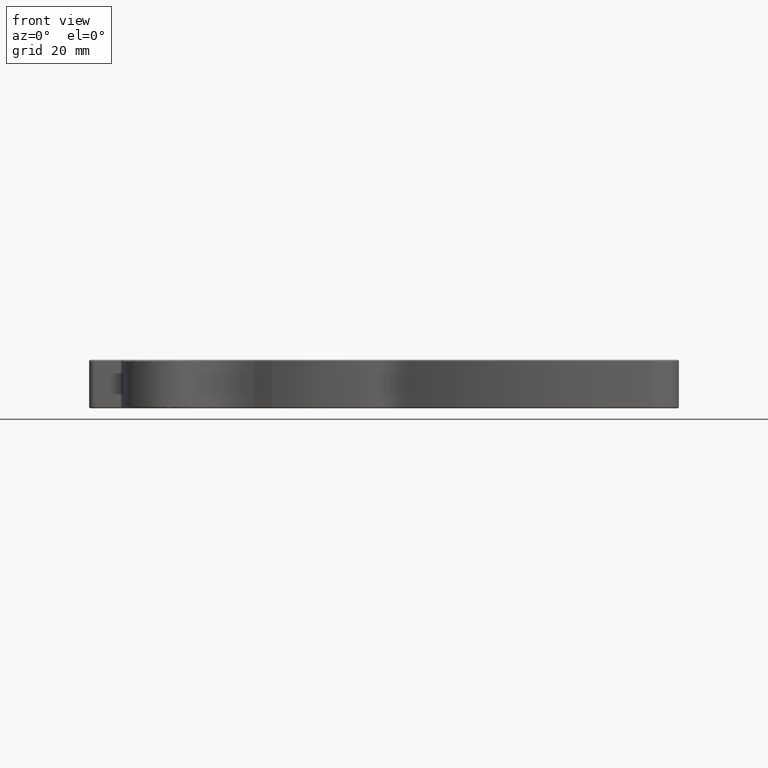
[diagram: clean part render]
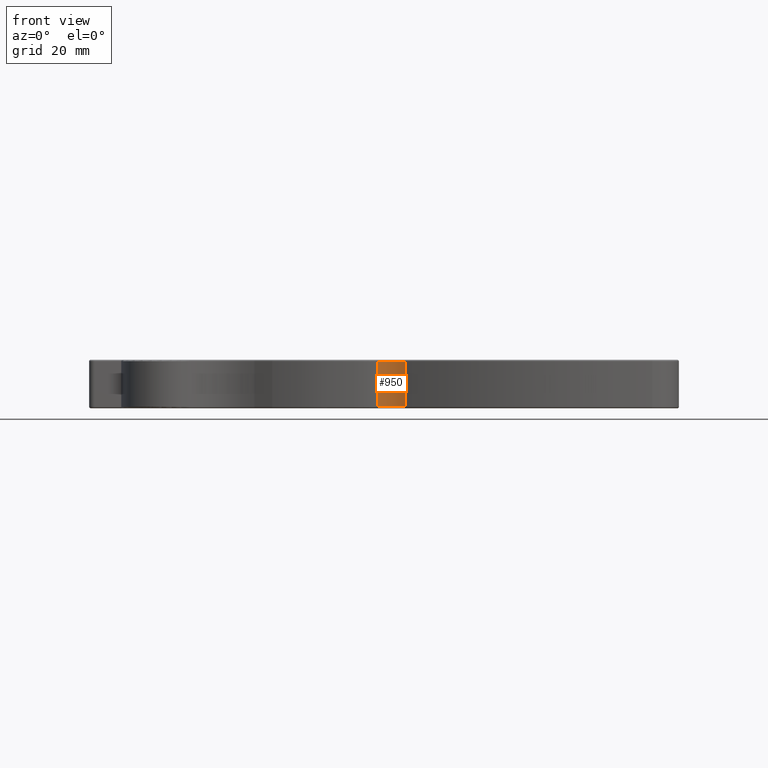
[diagram: same view with one face highlighted and labeled with its STEP entity id]
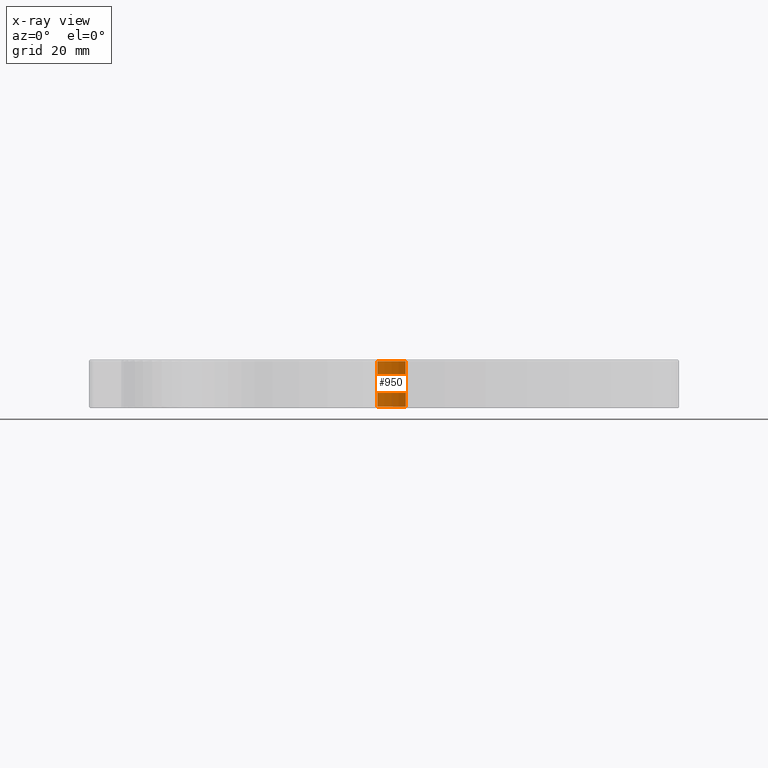
[diagram: x-ray of the same camera — body ghosted, the highlighted face saturated]
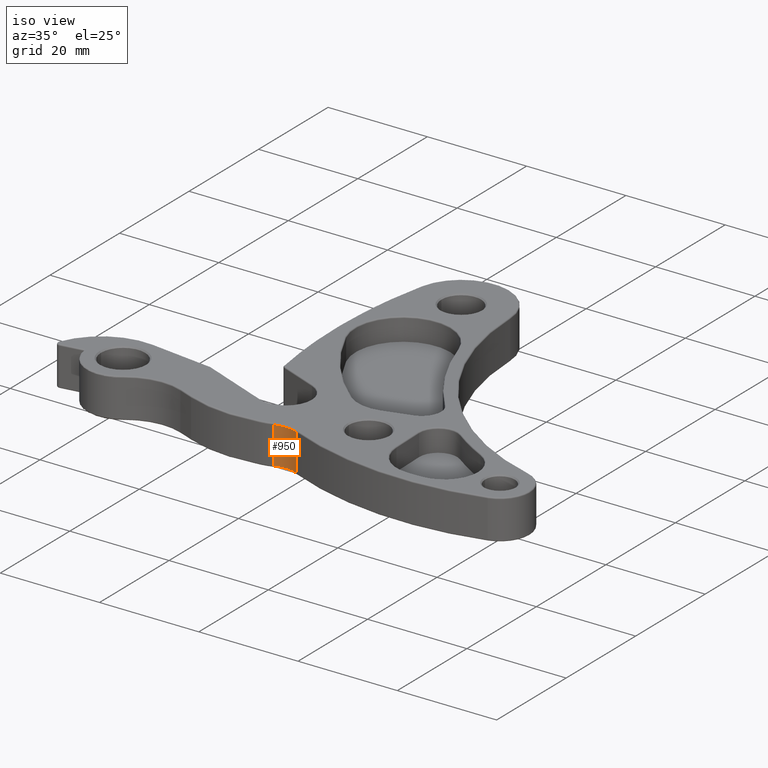
[diagram: same view with one face highlighted and labeled with its STEP entity id]
A machine part, front view. The second image highlights one B-rep face of the part: STEP entity #950.
The next image is the same camera in x-ray: the body ghosted, the highlighted face saturated — about 0% of this face is hidden behind the body in this view.
A second angle (iso view) of the same face is appended — the face is thin or edge-on in the first view.
In plain terms, the highlighted cylindrical surface (partial cylindrical patch) has radius 6.35 mm, axis along (-0, -0, -1).
Its self-contained STEP definition (entity closure, byte-faithful):
#76 = VERTEX_POINT ( 'NONE', #1525 ) ;
#134 = LINE ( 'NONE', #2767, #754 ) ;
#144 = CYLINDRICAL_SURFACE ( 'NONE', #3468, 0.2500000000001768030 ) ;
#233 = CARTESIAN_POINT ( 'NONE',  ( 4.631671408059998996, -7.458809063469005629, 0.3049999999999999933 ) ) ;
#390 = DIRECTION ( 'NONE',  ( -0.0000000000000000000, -0.0000000000000000000, -1.000000000000000000 ) ) ;
#508 = DIRECTION ( 'NONE',  ( 0.0000000000000000000, 0.0000000000000000000, 1.000000000000000000 ) ) ;
#515 = EDGE_CURVE ( 'NONE', #1623, #76, #2925, .T. ) ;
#714 = DIRECTION ( 'NONE',  ( -1.000000000000000000, 0.0000000000000000000, 0.0000000000000000000 ) ) ;
#754 = VECTOR ( 'NONE', #3315, 39.37007874015748143 ) ;
#872 = AXIS2_PLACEMENT_3D ( 'NONE', #1989, #390, #2274 ) ;
#880 = CARTESIAN_POINT ( 'NONE',  ( 4.631671408059998996, -7.458809063469005629, 0.3150000000000000022 ) ) ;
#950 = ADVANCED_FACE ( 'NONE', ( #3018 ), #144, .F. ) ;
#1018 = DIRECTION ( 'NONE',  ( -0.0000000000000000000, -0.0000000000000000000, -1.000000000000000000 ) ) ;
#1100 = CARTESIAN_POINT ( 'NONE',  ( 4.733603336189754707, -7.230533173309716233, 0.3150000000000000022 ) ) ;
#1158 = CARTESIAN_POINT ( 'NONE',  ( 4.733603336189754707, -7.230533173309716233, 0.3049999999999999933 ) ) ;
#1184 = ORIENTED_EDGE ( 'NONE', *, *, #1855, .F. ) ;
#1451 = CARTESIAN_POINT ( 'NONE',  ( 4.733603336189754707, -7.230533173309716233, 0.009999999999999995004 ) ) ;
#1525 = CARTESIAN_POINT ( 'NONE',  ( 4.550111318219475010, -7.222487351082492957, 0.3049999999999999933 ) ) ;
#1623 = VERTEX_POINT ( 'NONE', #1158 ) ;
#1653 = AXIS2_PLACEMENT_3D ( 'NONE', #233, #508, #2670 ) ;
#1702 = ORIENTED_EDGE ( 'NONE', *, *, #515, .T. ) ;
#1704 = ORIENTED_EDGE ( 'NONE', *, *, #2798, .T. ) ;
#1855 = EDGE_CURVE ( 'NONE', #1623, #3346, #2386, .T. ) ;
#1989 = CARTESIAN_POINT ( 'NONE',  ( 4.631671408059998996, -7.458809063469005629, 0.009999999999999995004 ) ) ;
#2069 = VERTEX_POINT ( 'NONE', #2272 ) ;
#2272 = CARTESIAN_POINT ( 'NONE',  ( 4.550111318219475010, -7.222487351082492957, 0.009999999999999995004 ) ) ;
#2274 = DIRECTION ( 'NONE',  ( 1.000000000000000000, 0.0000000000000000000, 0.0000000000000000000 ) ) ;
#2371 = ORIENTED_EDGE ( 'NONE', *, *, #3351, .T. ) ;
#2386 = LINE ( 'NONE', #1100, #3102 ) ;
#2656 = CIRCLE ( 'NONE', #872, 0.2500000000001768030 ) ;
#2670 = DIRECTION ( 'NONE',  ( 1.000000000000000000, 0.0000000000000000000, 0.0000000000000000000 ) ) ;
#2701 = DIRECTION ( 'NONE',  ( -0.0000000000000000000, -0.0000000000000000000, -1.000000000000000000 ) ) ;
#2767 = CARTESIAN_POINT ( 'NONE',  ( 4.550111318219475010, -7.222487351082492957, 0.3150000000000000022 ) ) ;
#2798 = EDGE_CURVE ( 'NONE', #76, #2069, #134, .T. ) ;
#2925 = CIRCLE ( 'NONE', #1653, 0.2500000000001768030 ) ;
#3018 = FACE_OUTER_BOUND ( 'NONE', #3426, .T. ) ;
#3102 = VECTOR ( 'NONE', #2701, 39.37007874015748143 ) ;
#3315 = DIRECTION ( 'NONE',  ( -0.0000000000000000000, -0.0000000000000000000, -1.000000000000000000 ) ) ;
#3346 = VERTEX_POINT ( 'NONE', #1451 ) ;
#3351 = EDGE_CURVE ( 'NONE', #2069, #3346, #2656, .T. ) ;
#3426 = EDGE_LOOP ( 'NONE', ( #1704, #2371, #1184, #1702 ) ) ;
#3468 = AXIS2_PLACEMENT_3D ( 'NONE', #880, #1018, #714 ) ;